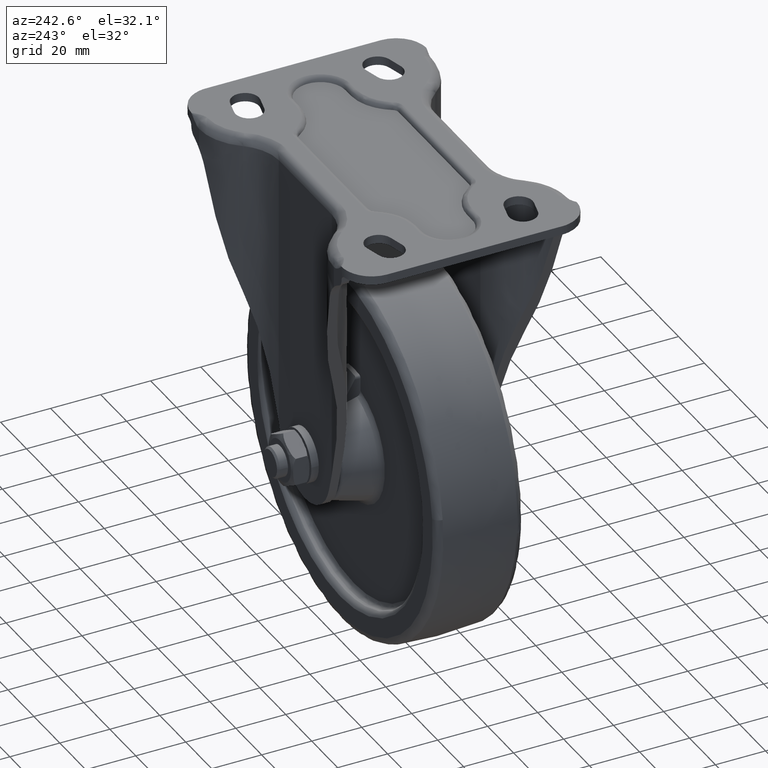
[diagram: clean part render]
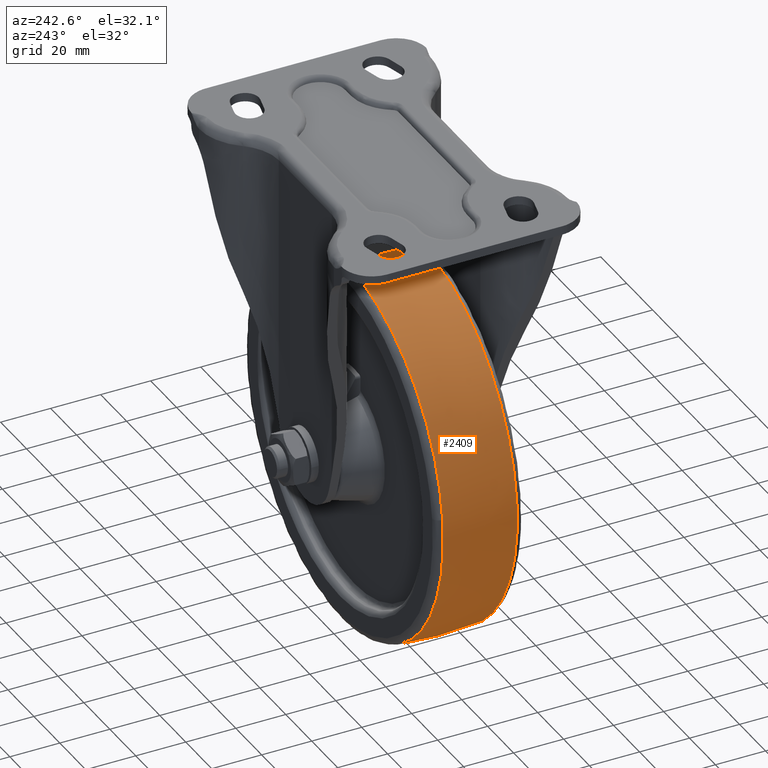
[diagram: same view with one face highlighted and labeled with its STEP entity id]
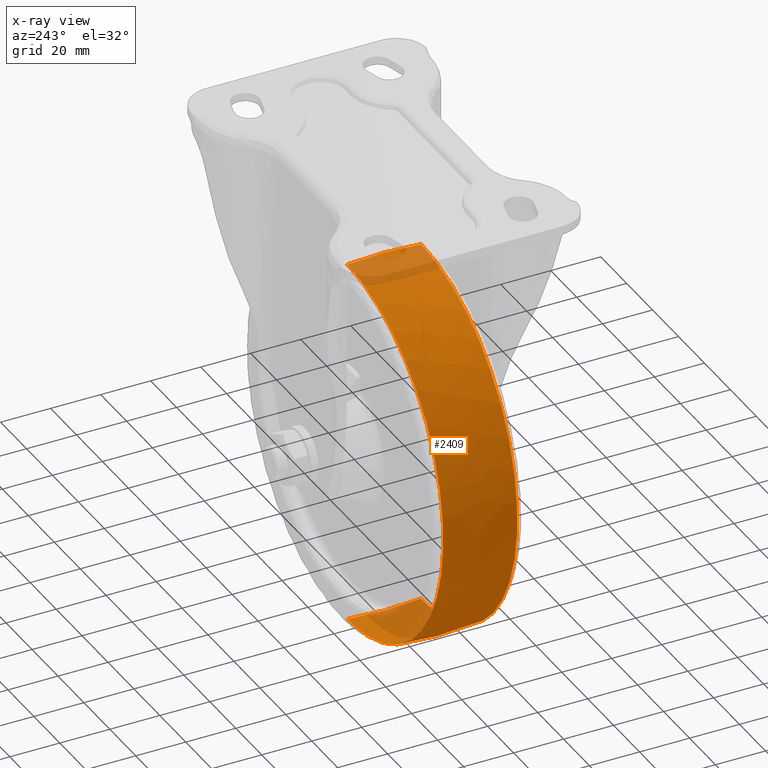
[diagram: x-ray of the same camera — body ghosted, the highlighted face saturated]
A machine part, auxiliary view. The second image highlights one B-rep face of the part: STEP entity #2409.
The next image is the same camera in x-ray: the body ghosted, the highlighted face saturated — about 11% of this face is hidden behind the body in this view.
In plain terms, the highlighted face is a freeform B-spline surface patch.
Its self-contained STEP definition (entity closure, byte-faithful):
#2103=CARTESIAN_POINT('',(-74.057479503543391,-14.795880221263680,-5.594422626522098));
#2104=VERTEX_POINT('',#2103);
#2105=CARTESIAN_POINT('',(0.0,-14.795868514486580,-74.268503608387704));
#2106=VERTEX_POINT('',#2105);
#2107=CARTESIAN_POINT('',(-74.057479503543391,-14.795880221263674,-5.594422626522098));
#2108=CARTESIAN_POINT('',(-68.869742892077895,-14.795868604777116,-74.268503676267585));
#2109=CARTESIAN_POINT('',(0.0,-14.795868514486580,-74.268503608387704));
#2117=(BOUNDED_CURVE()B_SPLINE_CURVE(2,(#2107,#2108,#2109),.UNSPECIFIED.,.F.,.U.)B_SPLINE_CURVE_WITH_KNOTS((3,3),(0.763129835866856,1.0),.UNSPECIFIED.)CURVE()GEOMETRIC_REPRESENTATION_ITEM()RATIONAL_B_SPLINE_CURVE((0.970850644741399,0.722489340744690,1.0))REPRESENTATION_ITEM(''));
#2118=EDGE_CURVE('',#2104,#2106,#2117,.T.);
#2197=CARTESIAN_POINT('',(0.0,-14.795893444798640,74.268470160021991));
#2198=VERTEX_POINT('',#2197);
#2199=CARTESIAN_POINT('',(0.0,-14.795893444798640,74.268470160021991));
#2200=CARTESIAN_POINT('',(-74.268482544907883,-14.795893528525761,74.268470097076445));
#2201=CARTESIAN_POINT('',(-74.268483443486318,-14.795881153660289,-0.000016855008292));
#2202=CARTESIAN_POINT('',(-74.268483477377970,-14.795880686917888,-2.801198956729981));
#2203=CARTESIAN_POINT('',(-74.057479503543391,-14.795880221263674,-5.594422626522098));
#2211=(BOUNDED_CURVE()B_SPLINE_CURVE(2,(#2199,#2200,#2201,#2202,#2203),.UNSPECIFIED.,.F.,.U.)B_SPLINE_CURVE_WITH_KNOTS((3,2,3),(0.500000000000000,0.750000000000000,0.763129835866856),.UNSPECIFIED.)CURVE()GEOMETRIC_REPRESENTATION_ITEM()RATIONAL_B_SPLINE_CURVE((1.0,0.707106781186548,1.0,0.984617440441857,0.970850644741399))REPRESENTATION_ITEM(''));
#2212=EDGE_CURVE('',#2198,#2104,#2211,.T.);
#2277=CARTESIAN_POINT('',(0.0,14.795863925985330,-74.268504063209633));
#2278=VERTEX_POINT('',#2277);
#2279=CARTESIAN_POINT('',(0.0,-14.795868514486580,-74.268503608387704));
#2280=CARTESIAN_POINT('',(0.0,-4.964083912668833,-75.243727410171687));
#2281=CARTESIAN_POINT('',(0.0,4.964080939492773,-75.243970040866813));
#2282=CARTESIAN_POINT('',(0.0,14.795863925985330,-74.268504063209633));
#2283=B_SPLINE_CURVE_WITH_KNOTS('',3,(#2279,#2280,#2281,#2282),.UNSPECIFIED.,.F.,.U.,(4,4),(-7.370552E-009,29.639941858212701),.UNSPECIFIED.);
#2284=EDGE_CURVE('',#2106,#2278,#2283,.T.);
#2301=CARTESIAN_POINT('',(0.0,14.795864118738340,74.268475998525219));
#2302=VERTEX_POINT('',#2301);
#2318=CARTESIAN_POINT('',(0.0,-14.795893444798640,74.268470160021991));
#2319=CARTESIAN_POINT('',(0.0,-4.964103659051311,75.243596784240069));
#2320=CARTESIAN_POINT('',(0.0,4.964076359613130,75.244010842054251));
#2321=CARTESIAN_POINT('',(0.0,14.795864118738340,74.268475998525219));
#2322=B_SPLINE_CURVE_WITH_KNOTS('',3,(#2318,#2319,#2320,#2321),.UNSPECIFIED.,.F.,.U.,(4,4),(-7.370730E-009,29.639967103801329),.UNSPECIFIED.);
#2323=EDGE_CURVE('',#2198,#2302,#2322,.T.);
#2330=CARTESIAN_POINT('',(2.071961771045814,-16.287105617634644,74.113130599575030));
#2331=CARTESIAN_POINT('',(2.096755326889369,-8.167698005208202,74.999985000000152));
#2332=CARTESIAN_POINT('',(2.096755326889370,-1.377682E-014,74.999985000000166));
#2333=CARTESIAN_POINT('',(2.096755326889369,8.167688801715492,74.999985000000152));
#2334=CARTESIAN_POINT('',(2.071961826756154,16.287087373570518,74.113132592308986));
#2335=CARTESIAN_POINT('',(1.042014178832756,-16.287105617634641,74.113130599575030));
#2336=CARTESIAN_POINT('',(1.054483152485501,-8.167698005208202,74.999985000000137));
#2337=CARTESIAN_POINT('',(1.054483152485501,-1.377682E-014,74.999985000000152));
#2338=CARTESIAN_POINT('',(1.054483152485502,8.167688801715494,74.999985000000152));
#2339=CARTESIAN_POINT('',(1.042014206850148,16.287087373570511,74.113132592308986));
#2340=CARTESIAN_POINT('',(-74.113145599574878,-16.287105617634644,74.113130599575015));
#2341=CARTESIAN_POINT('',(-75.000000000000014,-8.167698005208203,74.999985000000180));
#2342=CARTESIAN_POINT('',(-75.000000000000014,-1.377682E-014,74.999985000000152));
#2343=CARTESIAN_POINT('',(-75.0,8.167688801715492,74.999985000000152));
#2344=CARTESIAN_POINT('',(-74.113147592308835,16.287087373570504,74.113132592308986));
#2345=CARTESIAN_POINT('',(-74.113145599574864,-16.287105617634648,-0.000014999999839));
#2346=CARTESIAN_POINT('',(-74.999999999999986,-8.167698005208202,-0.000014999999839));
#2347=CARTESIAN_POINT('',(-75.0,-1.377682E-014,-0.000014999999839));
#2348=CARTESIAN_POINT('',(-75.0,8.167688801715494,-0.000014999999839));
#2349=CARTESIAN_POINT('',(-74.113147592308835,16.287087373570515,-0.000014999999839));
#2350=CARTESIAN_POINT('',(-74.113145599574878,-16.287105617634644,-74.113160599574684));
#2351=CARTESIAN_POINT('',(-75.000000000000014,-8.167698005208203,-75.000014999999834));
#2352=CARTESIAN_POINT('',(-75.000000000000014,-1.377682E-014,-75.000014999999834));
#2353=CARTESIAN_POINT('',(-75.0,8.167688801715492,-75.000014999999820));
#2354=CARTESIAN_POINT('',(-74.113147592308835,16.287087373570504,-74.113162592308683));
#2355=CARTESIAN_POINT('',(1.042014178832748,-16.287105617634641,-74.113160599574684));
#2356=CARTESIAN_POINT('',(1.054483152485493,-8.167698005208202,-75.000014999999820));
#2357=CARTESIAN_POINT('',(1.054483152485493,-1.377682E-014,-75.000014999999834));
#2358=CARTESIAN_POINT('',(1.054483152485494,8.167688801715494,-75.000014999999820));
#2359=CARTESIAN_POINT('',(1.042014206850140,16.287087373570511,-74.113162592308669));
#2360=CARTESIAN_POINT('',(2.071961771045798,-16.287105617634644,-74.113160599574698));
#2361=CARTESIAN_POINT('',(2.096755326889353,-8.167698005208203,-75.000014999999820));
#2362=CARTESIAN_POINT('',(2.096755326889353,-1.377682E-014,-75.000014999999834));
#2363=CARTESIAN_POINT('',(2.096755326889354,8.167688801715494,-75.000014999999834));
#2364=CARTESIAN_POINT('',(2.071961826756139,16.287087373570508,-74.113162592308669));
#2372=(BOUNDED_SURFACE()B_SPLINE_SURFACE(2,2,((#2330,#2335,#2340,#2345,#2350,#2355,#2360),(#2331,#2336,#2341,#2346,#2351,#2356,#2361),(#2332,#2337,#2342,#2347,#2352,#2357,#2362),(#2333,#2338,#2343,#2348,#2353,#2358,#2363),(#2334,#2339,#2344,#2349,#2354,#2359,#2364)),.UNSPECIFIED.,.F.,.F.,.U.)B_SPLINE_SURFACE_WITH_KNOTS((3,2,3),(3,1,2,1,3),(0.0,16.524737538032529,33.049456723493783),(0.0,2.485281374238573,126.749350086167100,251.013418798095610,253.498700172334200),.UNSPECIFIED.)GEOMETRIC_REPRESENTATION_ITEM()RATIONAL_B_SPLINE_SURFACE(((0.985741273765220,0.980033802261414,0.688952755567312,0.974326330757608,0.688952755567312,0.980033802261414,0.985741273765220),(0.997166877312877,0.991393251222267,0.696938320601137,0.985619625131656,0.696938320601137,0.991393251222267,0.997166877312877),(1.011715728752538,1.005857864376269,0.707106781186548,1.0,0.707106781186548,1.005857864376269,1.011715728752538),(0.997166893471006,0.991393267286839,0.696938331894351,0.985619641102673,0.696938331894351,0.991393267286839,0.997166893471005),(0.985741299144048,0.980033827493298,0.688952773305043,0.974326355842548,0.688952773305043,0.980033827493298,0.985741299144048)))REPRESENTATION_ITEM('')SURFACE());
#2373=ORIENTED_EDGE('',*,*,#2284,.F.);
#2374=ORIENTED_EDGE('',*,*,#2118,.F.);
#2375=ORIENTED_EDGE('',*,*,#2212,.F.);
#2376=ORIENTED_EDGE('',*,*,#2323,.T.);
#2377=CARTESIAN_POINT('',(-73.794008096670723,14.795864102405380,8.381657884497200));
#2378=VERTEX_POINT('',#2377);
#2379=CARTESIAN_POINT('',(0.0,14.795864118738340,74.268475998525219));
#2380=CARTESIAN_POINT('',(-66.310451281651140,14.795864153321762,74.268476037436670));
#2381=CARTESIAN_POINT('',(-73.794008096670723,14.795864102405382,8.381657884497200));
#2389=(BOUNDED_CURVE()B_SPLINE_CURVE(2,(#2379,#2380,#2381),.UNSPECIFIED.,.F.,.U.)B_SPLINE_CURVE_WITH_KNOTS((3,3),(0.500000000000000,0.730444239896958),.UNSPECIFIED.)CURVE()GEOMETRIC_REPRESENTATION_ITEM()RATIONAL_B_SPLINE_CURVE((1.0,0.730017779278242,0.957762339675830))REPRESENTATION_ITEM(''));
#2390=EDGE_CURVE('',#2302,#2378,#2389,.T.);
#2391=ORIENTED_EDGE('',*,*,#2390,.T.);
#2392=CARTESIAN_POINT('',(-73.794008096670723,14.795864102405382,8.381657884497200));
#2393=CARTESIAN_POINT('',(-74.268486206247729,14.795864095236505,4.204251832650825));
#2394=CARTESIAN_POINT('',(-74.268486186854332,14.795864087822990,-0.000013958688760));
#2395=CARTESIAN_POINT('',(-74.268485844269591,14.795863956863055,-74.268504028467632));
#2396=CARTESIAN_POINT('',(0.0,14.795863925985330,-74.268504063209633));
#2404=(BOUNDED_CURVE()B_SPLINE_CURVE(2,(#2392,#2393,#2394,#2395,#2396),.UNSPECIFIED.,.F.,.U.)B_SPLINE_CURVE_WITH_KNOTS((3,2,3),(0.730444239896958,0.750000000000000,1.0),.UNSPECIFIED.)CURVE()GEOMETRIC_REPRESENTATION_ITEM()RATIONAL_B_SPLINE_CURVE((0.957762339675830,0.977089001908306,1.0,0.707106781186548,1.0))REPRESENTATION_ITEM(''));
#2405=EDGE_CURVE('',#2378,#2278,#2404,.T.);
#2406=ORIENTED_EDGE('',*,*,#2405,.T.);
#2407=EDGE_LOOP('',(#2373,#2374,#2375,#2376,#2391,#2406));
#2408=FACE_OUTER_BOUND('',#2407,.T.);
#2409=ADVANCED_FACE('',(#2408),#2372,.T.);